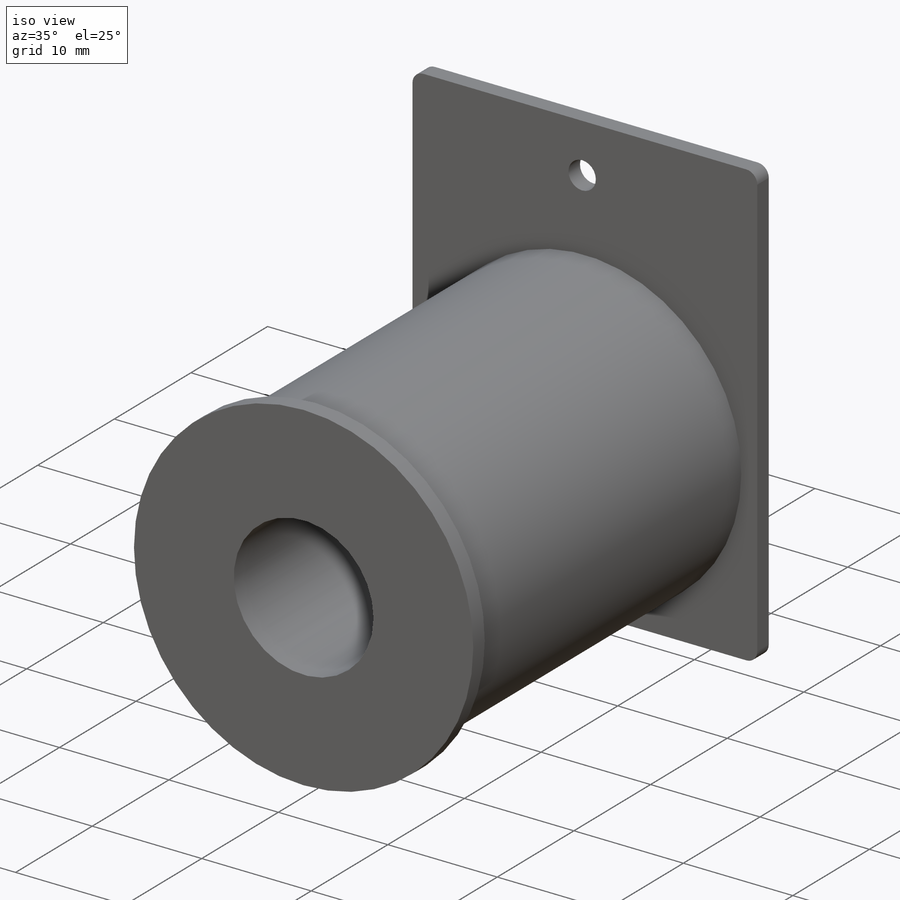
[diagram: iso view]
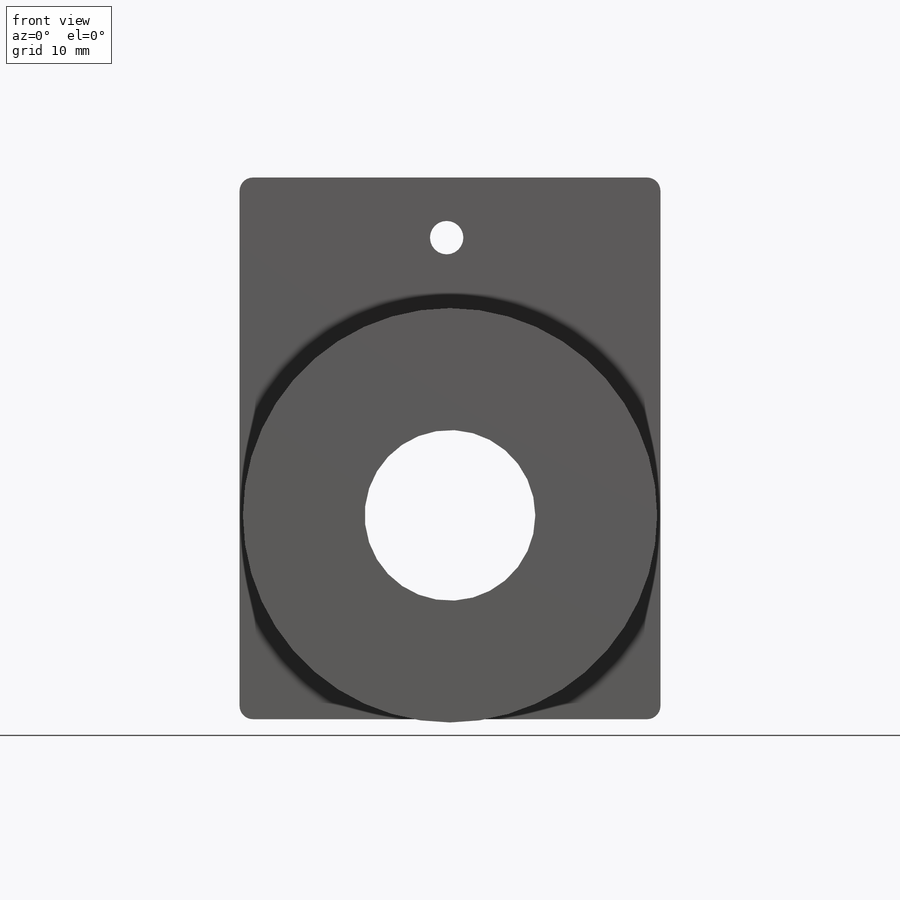
[diagram: front view]
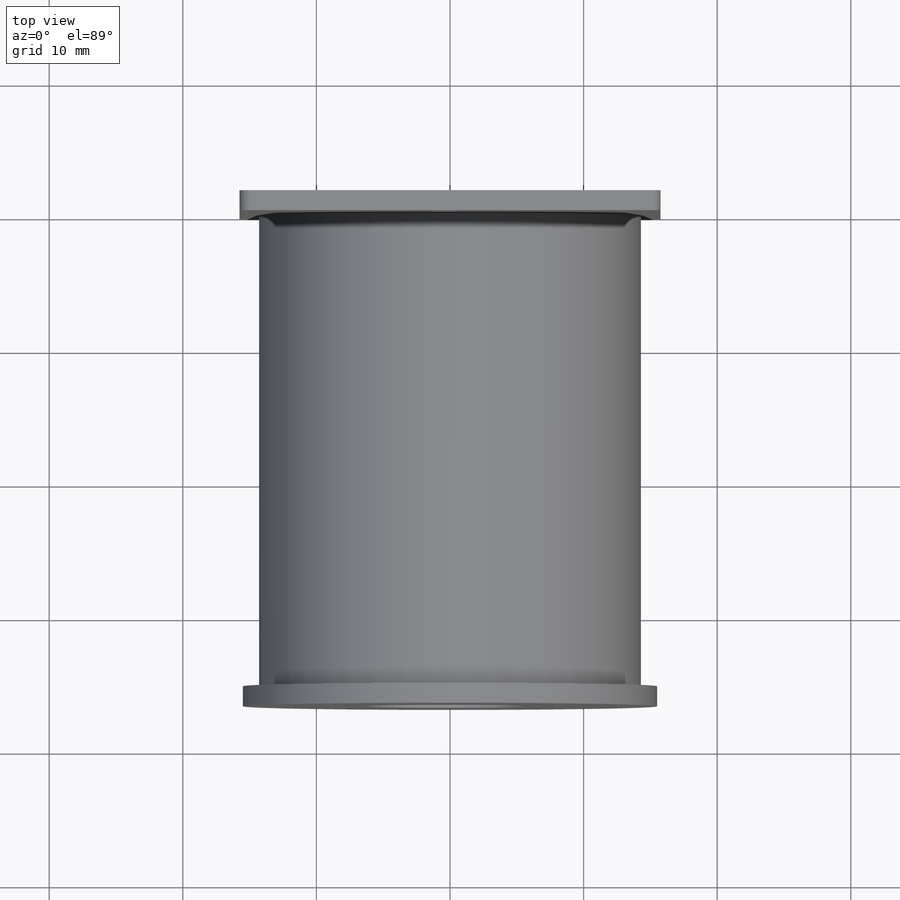
[diagram: top view]
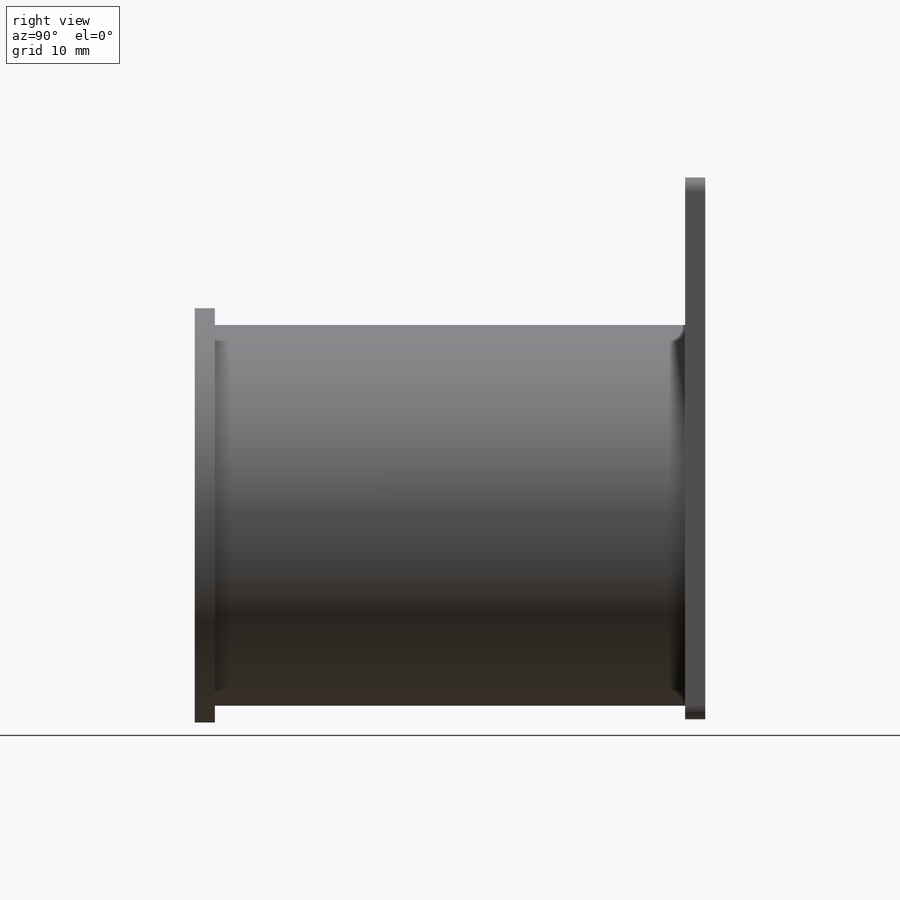
[diagram: right view]
SOLIDWORKS PART (.sldprt)
format: sldprt  version: not decoded by parser v0  size: 241,152 bytes
history: native  units: mm
features: sketch x4, plane x3, extrude x3, material x1, cut_extrude x1 (+10 scaffold rows collapsed)
feature tree (22):
  scaffold x10  (default folders/planes/origin — collapsed)
  material  "ABS"
  plane  "Plan de face"
  plane  "Plan de dessus"
  plane  "Plan de droite"
  sketch  "Esquisse1"  dims[D1=28.57mm]
  extrude  "Boss.-Extru.1"  Depth=35.2mm
  sketch  "Esquisse2"  dims[D1=31.0mm]
  extrude  "Boss.-Extru.2"  Depth=1.5mm
  sketch  "Esquisse4"  dims[c1.D2=31.0mm c1.D5=1.0mm c1.D1=40.54mm c2.D2=31.5mm c2.D3=15.75mm c2.D4=11.0mm]
  extrude  "Boss.-Extru.3"  Depth=1.5mm
  sketch  "Esquisse3"  dims[D1=12.77mm D4=2.5mm D2=15.5mm D3=4.5mm]
  cut_extrude  "Enlèv. mat.-Extru.1"  [1 undecoded]
decode coverage: 7 of 8 modeling features carry decoded parameters
note: 1 parameter value undecoded
note: suppression state not decoded; provenance and decode notes live in map.json
